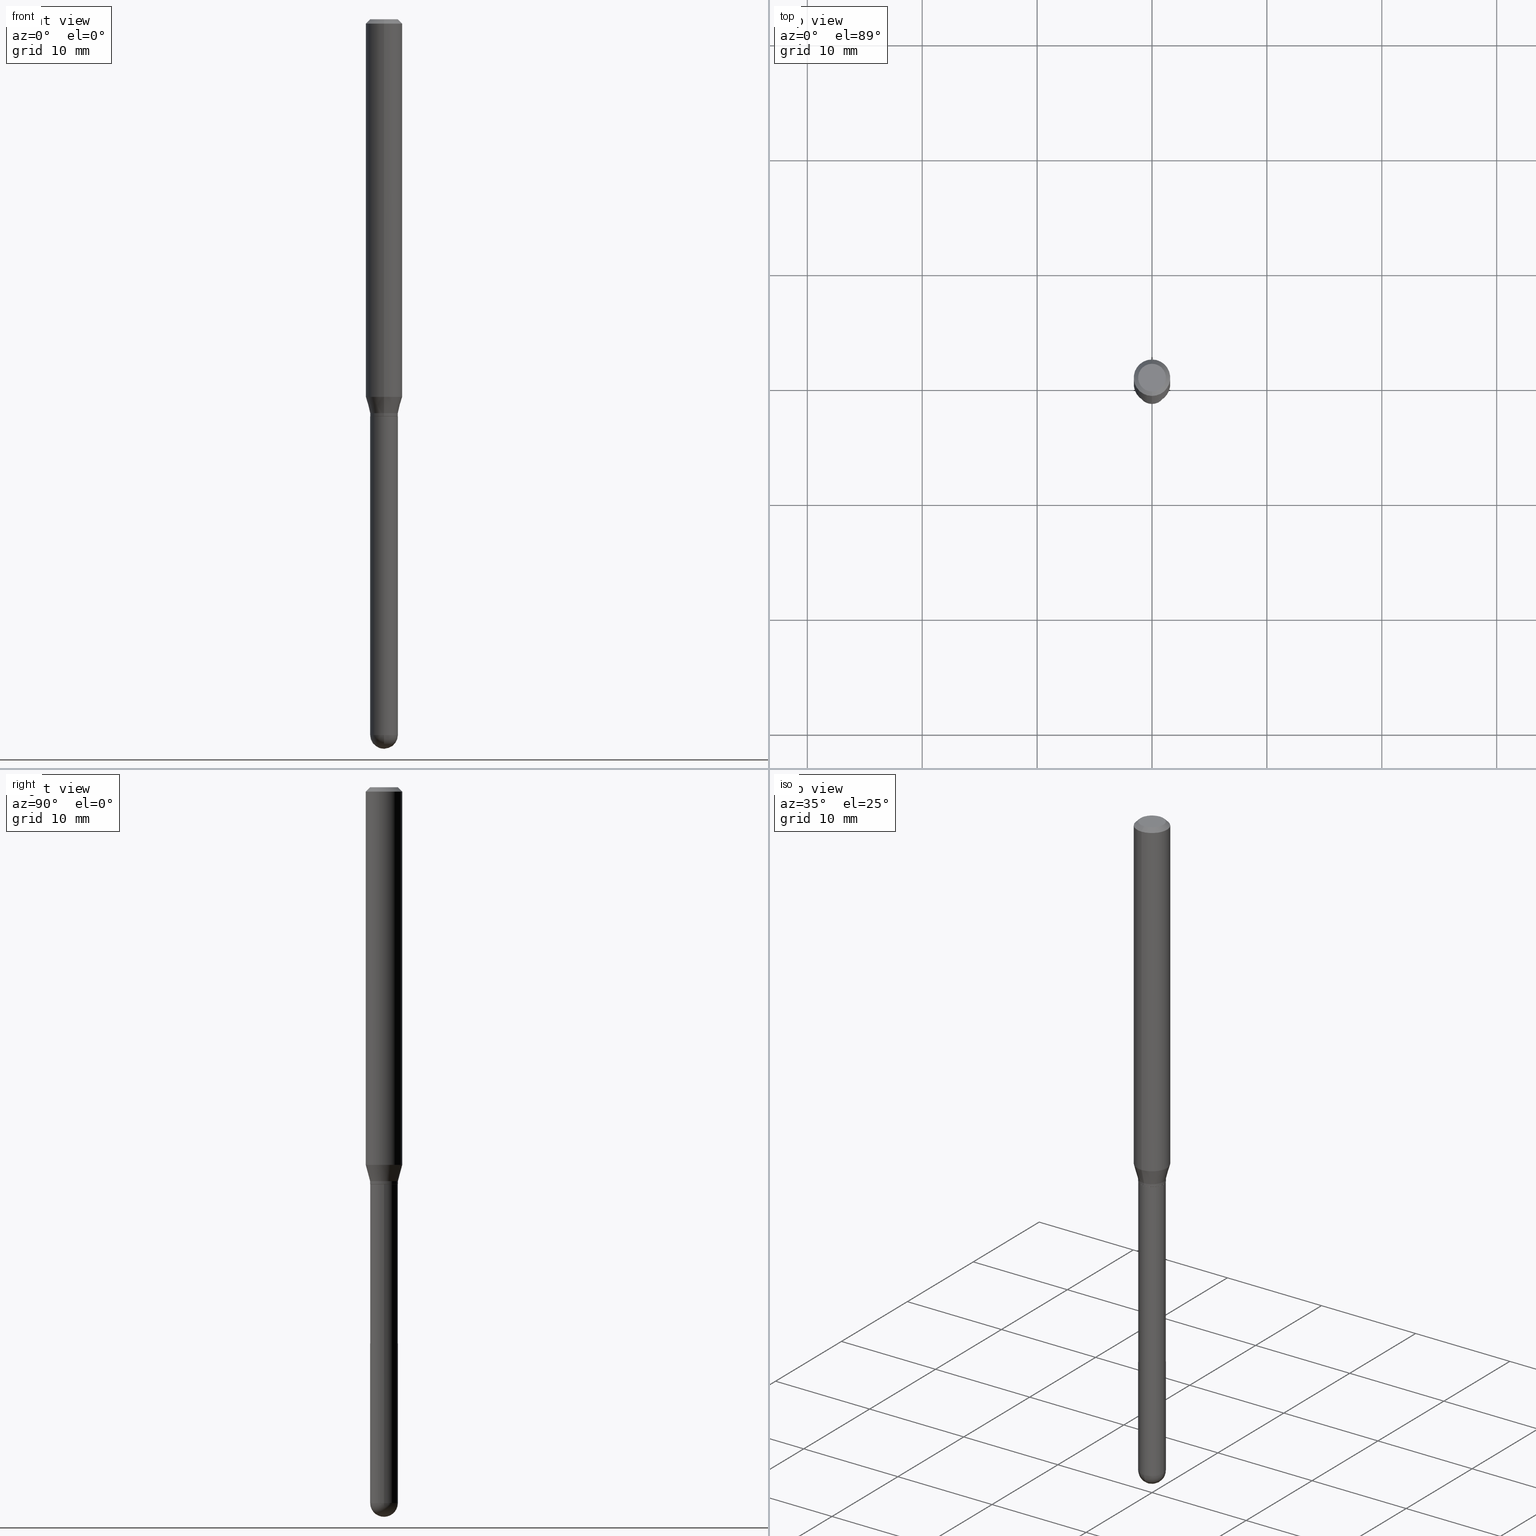
[diagram: canonical four-view strip — front | top / right | iso, engineering-drawing reading convention]
A machine part, canonical four-view strip (front | top / right | iso — engineering-drawing reading convention). The complete STEP part file that produces these views, byte-faithful:
ISO-10303-21;
HEADER;
FILE_DESCRIPTION (( 'STEP AP203' ),
    '1' );
FILE_NAME ('04532.STEP',
    '2024-03-08T20:34:15',
    ( '' ),
    ( '' ),
    'SwSTEP 2.0',
    'SolidWorks 2023',
    '' );
FILE_SCHEMA (( 'CONFIG_CONTROL_DESIGN' ));
ENDSEC;

DATA;
#1 = VECTOR ( 'NONE', #48, 39.37007874015748143 ) ;
#2 = CARTESIAN_POINT ( 'NONE',  ( 3.907985046680881378E-16, 0.04749999999999549027, -1.350000000000000311 ) ) ;
#3 = VECTOR ( 'NONE', #182, 39.37007874015748143 ) ;
#4 = DIRECTION ( 'NONE',  ( -6.982962677686266711E-15, -1.000000000000000000, 5.812442539711199378E-15 ) ) ;
#5 = VERTEX_POINT ( 'NONE', #459 ) ;
#6 = ADVANCED_FACE ( 'NONE', ( #102 ), #350, .T. ) ;
#7 = COORDINATED_UNIVERSAL_TIME_OFFSET ( 5, 0, .BEHIND. ) ;
#8 = DIRECTION ( 'NONE',  ( -2.445498962986345500E-29, 3.491438152587396054E-15, 1.000000000000000000 ) ) ;
#9 = CARTESIAN_POINT ( 'NONE',  ( -3.316907271900970672E-16, -0.04749999999999991729, 1.658433122479010522E-16 ) ) ;
#10 = PERSON_AND_ORGANIZATION_ROLE ( 'classification_officer' ) ;
#11 = DIRECTION ( 'NONE',  ( -2.445498962986345220E-29, 3.491438152587396054E-15, 1.000000000000000000 ) ) ;
#12 = FACE_OUTER_BOUND ( 'NONE', #497, .T. ) ;
#13 = EDGE_CURVE ( 'NONE', #339, #488, #421, .T. ) ;
#14 = CIRCLE ( 'NONE', #341, 0.04749999999999999362 ) ;
#15 = CC_DESIGN_APPROVAL ( #207, ( #134 ) ) ;
#16 = LINE ( 'NONE', #46, #35 ) ;
#17 = DIRECTION ( 'NONE',  ( -6.982962677686266711E-15, -1.000000000000000000, 3.491438152587396054E-15 ) ) ;
#18 = PERSON_AND_ORGANIZATION_ROLE ( 'creator' ) ;
#19 = ORIENTED_EDGE ( 'NONE', *, *, #173, .T. ) ;
#20 = CIRCLE ( 'NONE', #171, 0.04750000000000000749 ) ;
#21 = CARTESIAN_POINT ( 'NONE',  ( 3.301423600031566902E-29, -4.713441505992984239E-15, -1.350000000000000089 ) ) ;
#22 = CIRCLE ( 'NONE', #290, 0.04749999999999998668 ) ;
#23 = ADVANCED_FACE ( 'NONE', ( #398 ), #195, .T. ) ;
#24 = ORIENTED_EDGE ( 'NONE', *, *, #188, .F. ) ;
#25 = ORIENTED_EDGE ( 'NONE', *, *, #13, .T. ) ;
#26 = DIRECTION ( 'NONE',  ( -2.445498962986345500E-29, 3.491438152587396054E-15, 1.000000000000000000 ) ) ;
#27 = DIRECTION ( 'NONE',  ( -2.445498962986345500E-29, 3.491438152587396054E-15, 1.000000000000000000 ) ) ;
#28 = EDGE_CURVE ( 'NONE', #131, #72, #75, .T. ) ;
#29 = ORIENTED_EDGE ( 'NONE', *, *, #372, .T. ) ;
#30 = FACE_OUTER_BOUND ( 'NONE', #389, .T. ) ;
#31 = CIRCLE ( 'NONE', #348, 0.04750000000000000749 ) ;
#32 = ORIENTED_EDGE ( 'NONE', *, *, #140, .T. ) ;
#33 = CC_DESIGN_PERSON_AND_ORGANIZATION_ASSIGNMENT ( #206, #436, ( #475 ) ) ;
#34 = LINE ( 'NONE', #196, #469 ) ;
#35 = VECTOR ( 'NONE', #11, 39.37007874015748143 ) ;
#36 = ORIENTED_EDGE ( 'NONE', *, *, #393, .F. ) ;
#37 = COORDINATED_UNIVERSAL_TIME_OFFSET ( 5, 0, .BEHIND. ) ;
#38 =( LENGTH_UNIT ( ) NAMED_UNIT ( * ) SI_UNIT ( $, .METRE. ) );
#39 = ADVANCED_FACE ( 'NONE', ( #12 ), #105, .T. ) ;
#40 = DIRECTION ( 'NONE',  ( 6.982962677686265133E-15, 1.000000000000000000, 0.000000000000000000 ) ) ;
#41 = DIRECTION ( 'NONE',  ( -2.445468806185136877E-29, 3.491481338843145188E-15, 1.000000000000000000 ) ) ;
#42 = AXIS2_PLACEMENT_3D ( 'NONE', #303, #388, #346 ) ;
#43 = DIRECTION ( 'NONE',  ( -2.445468806185136597E-29, 3.491481338843145583E-15, 1.000000000000000000 ) ) ;
#44 = DIRECTION ( 'NONE',  ( 1.000000000000000000, -6.982962677686266711E-15, 4.876176775795934672E-29 ) ) ;
#45 = COORDINATED_UNIVERSAL_TIME_OFFSET ( 5, 0, .BEHIND. ) ;
#46 = CARTESIAN_POINT ( 'NONE',  ( 3.375077994860469513E-16, 0.04749999999999991729, -1.658433122479010522E-16 ) ) ;
#47 = EDGE_CURVE ( 'NONE', #380, #216, #320, .T. ) ;
#48 = DIRECTION ( 'NONE',  ( -2.445498962986345220E-29, 3.491438152587396054E-15, 1.000000000000000000 ) ) ;
#49 = DATE_AND_TIME ( #121, #486 ) ;
#50 = CARTESIAN_POINT ( 'NONE',  ( 1.601857710178212652E-45, -2.286971783256373570E-31, -6.550228539954431705E-17 ) ) ;
#51 = AXIS2_PLACEMENT_3D ( 'NONE', #141, #101, #194 ) ;
#52 = CARTESIAN_POINT ( 'NONE',  ( 3.301423600031566902E-29, -4.713441505992984239E-15, -1.350000000000000089 ) ) ;
#53 = ORIENTED_EDGE ( 'NONE', *, *, #63, .T. ) ;
#54 = ORIENTED_EDGE ( 'NONE', *, *, #477, .T. ) ;
#55 = FACE_OUTER_BOUND ( 'NONE', #373, .T. ) ;
#56 = ORIENTED_EDGE ( 'NONE', *, *, #506, .T. ) ;
#57 = EDGE_LOOP ( 'NONE', ( #263, #306, #258, #97 ) ) ;
#58 = AXIS2_PLACEMENT_3D ( 'NONE', #493, #27, #149 ) ;
#59 = DIRECTION ( 'NONE',  ( -6.982962677686265922E-15, -1.000000000000000000, 4.370956789862821150E-15 ) ) ;
#60 = ORIENTED_EDGE ( 'NONE', *, *, #437, .F. ) ;
#61 = CARTESIAN_POINT ( 'NONE',  ( -3.316907271900611741E-16, -0.04750000000000428185, -1.359500000000000153 ) ) ;
#62 = DIRECTION ( 'NONE',  ( 1.000000000000000000, -6.982962677686280910E-15, 0.000000000000000000 ) ) ;
#63 = EDGE_CURVE ( 'NONE', #498, #216, #296, .T. ) ;
#64 = ORIENTED_EDGE ( 'NONE', *, *, #412, .T. ) ;
#65 = CARTESIAN_POINT ( 'NONE',  ( -0.04749999999999999362, -6.318128502683699525E-15, -1.360000000000000320 ) ) ;
#66 = VECTOR ( 'NONE', #41, 39.37007874015748143 ) ;
#67 = EDGE_LOOP ( 'NONE', ( #25, #327 ) ) ;
#68 = APPROVAL ( #294, 'UNSPECIFIED' ) ;
#69 = CARTESIAN_POINT ( 'NONE',  ( -3.316907271900660552E-16, -0.04750000000000491329, -1.349999999999999867 ) ) ;
#70 = PERSON_AND_ORGANIZATION ( #252, #359 ) ;
#71 = ORIENTED_EDGE ( 'NONE', *, *, #307, .F. ) ;
#72 = VERTEX_POINT ( 'NONE', #81 ) ;
#73 = PERSON_AND_ORGANIZATION ( #252, #359 ) ;
#74 = DIRECTION ( 'NONE',  ( -6.982962677686265133E-15, -1.000000000000000000, 5.751258934030070759E-15 ) ) ;
#75 = CIRCLE ( 'NONE', #288, 0.06250000000000000000 ) ;
#76 = PLANE ( 'NONE',  #124 ) ;
#77 = APPLICATION_PROTOCOL_DEFINITION ( 'international standard', 'config_control_design', 1994, #229 ) ;
#78 = DIRECTION ( 'NONE',  ( -1.000000000000000000, 6.982962677686265922E-15, -4.876176775795935793E-29 ) ) ;
#79 = EDGE_CURVE ( 'NONE', #370, #292, #439, .T. ) ;
#80 = DESIGN_CONTEXT ( 'detailed design', #229, 'design' ) ;
#81 = CARTESIAN_POINT ( 'NONE',  ( 4.440892098500944664E-16, 0.06249999999999995143, -0.01500000000000028394 ) ) ;
#82 = DIRECTION ( 'NONE',  ( -2.445498962986345220E-29, 3.491438152587396054E-15, 1.000000000000000000 ) ) ;
#83 = FACE_OUTER_BOUND ( 'NONE', #248, .T. ) ;
#84 = APPROVAL_DATE_TIME ( #49, #207 ) ;
#85 = SECURITY_CLASSIFICATION_LEVEL ( 'unclassified' ) ;
#86 = EDGE_CURVE ( 'NONE', #370, #220, #413, .T. ) ;
#87 = CARTESIAN_POINT ( 'NONE',  ( 3.375077994860819570E-16, 0.04749999999999549027, -1.350000000000000311 ) ) ;
#88 = FACE_OUTER_BOUND ( 'NONE', #57, .T. ) ;
#89 = DIRECTION ( 'NONE',  ( -2.445498962986345500E-29, 3.491438152587396054E-15, 1.000000000000000000 ) ) ;
#90 = ORIENTED_EDGE ( 'NONE', *, *, #173, .F. ) ;
#91 = CALENDAR_DATE ( 2024, 8, 3 ) ;
#92 = CC_DESIGN_SECURITY_CLASSIFICATION ( #134, ( #475 ) ) ;
#93 = DIRECTION ( 'NONE',  ( -6.982962677686265133E-15, -1.000000000000000000, 5.751258934030070759E-15 ) ) ;
#94 = EDGE_CURVE ( 'NONE', #488, #131, #120, .T. ) ;
#95 = CARTESIAN_POINT ( 'NONE',  ( 5.993450207295445537E-29, -8.568675055808764986E-15, -2.452500000000000124 ) ) ;
#96 = CARTESIAN_POINT ( 'NONE',  ( 4.364351673553919652E-16, 0.06249999999999995143, -0.01500000000000028394 ) ) ;
#97 = ORIENTED_EDGE ( 'NONE', *, *, #47, .F. ) ;
#98 = CARTESIAN_POINT ( 'NONE',  ( -3.281992458512212238E-16, -0.04700000000000473938, -1.360000000000000320 ) ) ;
#99 = ADVANCED_FACE ( 'NONE', ( #83 ), #476, .F. ) ;
#100 = ORIENTED_EDGE ( 'NONE', *, *, #323, .T. ) ;
#101 = DIRECTION ( 'NONE',  ( 2.445498962986345500E-29, -3.491438152587396054E-15, -1.000000000000000000 ) ) ;
#102 = FACE_OUTER_BOUND ( 'NONE', #463, .T. ) ;
#103 = ORIENTED_EDGE ( 'NONE', *, *, #86, .F. ) ;
#104 = ORIENTED_EDGE ( 'NONE', *, *, #477, .F. ) ;
#105 = CONICAL_SURFACE ( 'NONE', #447, 0.04699999999999999317, 0.7853981633969275844 ) ;
#106 = ORIENTED_EDGE ( 'NONE', *, *, #79, .T. ) ;
#107 = ADVANCED_FACE ( 'NONE', ( #402 ), #322, .T. ) ;
#108 = CARTESIAN_POINT ( 'NONE',  ( 0.000000000000000000, 0.000000000000000000, 0.000000000000000000 ) ) ;
#109 = ORIENTED_EDGE ( 'NONE', *, *, #113, .F. ) ;
#110 = EDGE_LOOP ( 'NONE', ( #311, #185, #274, #376 ) ) ;
#111 = CARTESIAN_POINT ( 'NONE',  ( 3.164522704335733428E-29, -4.517988137338873402E-15, -1.294019237886466112 ) ) ;
#112 = CARTESIAN_POINT ( 'NONE',  ( -0.04750000000000000749, -6.318128502683699525E-15, -2.452500000000000124 ) ) ;
#113 = EDGE_CURVE ( 'NONE', #498, #262, #289, .T. ) ;
#114 = CLOSED_SHELL ( 'NONE', ( #6, #217, #99, #312, #23 ) ) ;
#115 = DIRECTION ( 'NONE',  ( -6.982962677686265922E-15, -1.000000000000000000, 5.751258934030003706E-15 ) ) ;
#116 = CIRCLE ( 'NONE', #505, 0.04699999999999999317 ) ;
#117 = PERSON_AND_ORGANIZATION_ROLE ( 'design_owner' ) ;
#118 = DIRECTION ( 'NONE',  ( -6.982962677686266711E-15, -1.000000000000000000, 3.491438152587396054E-15 ) ) ;
#119 = CYLINDRICAL_SURFACE ( 'NONE', #298, 0.04749999999999991729 ) ;
#120 = LINE ( 'NONE', #285, #133 ) ;
#121 = CALENDAR_DATE ( 2024, 8, 3 ) ;
#122 = PERSON_AND_ORGANIZATION ( #252, #359 ) ;
#123 = DIRECTION ( 'NONE',  ( -6.982962677686265922E-15, -1.000000000000000000, 3.491438152587396054E-15 ) ) ;
#124 = AXIS2_PLACEMENT_3D ( 'NONE', #128, #178, #254 ) ;
#125 = AXIS2_PLACEMENT_3D ( 'NONE', #259, #148, #491 ) ;
#126 = DIRECTION ( 'NONE',  ( 6.982962677686265922E-15, 1.000000000000000000, -3.483106191921935554E-15 ) ) ;
#127 = FACE_OUTER_BOUND ( 'NONE', #215, .T. ) ;
#128 = CARTESIAN_POINT ( 'NONE',  ( 3.325878589661431203E-29, -4.748355887518859359E-15, -1.360000000000000320 ) ) ;
#129 = DATE_AND_TIME ( #244, #319 ) ;
#130 = ADVANCED_FACE ( 'NONE', ( #127 ), #76, .F. ) ;
#131 = VERTEX_POINT ( 'NONE', #251 ) ;
#132 = DATE_AND_TIME ( #91, #391 ) ;
#133 = VECTOR ( 'NONE', #363, 39.37007874015748143 ) ;
#134 = SECURITY_CLASSIFICATION ( '', '', #85 ) ;
#135 = ORIENTED_EDGE ( 'NONE', *, *, #379, .F. ) ;
#136 = LINE ( 'NONE', #324, #243 ) ;
#137 = DIRECTION ( 'NONE',  ( 4.937700262164548042E-15, 0.7071067811865451302, -0.7071067811865499042 ) ) ;
#138 = DIRECTION ( 'NONE',  ( -2.445498962986345500E-29, 3.491438152587396054E-15, 1.000000000000000000 ) ) ;
#139 = DIRECTION ( 'NONE',  ( 1.000000000000000000, -6.982962677686261977E-15, 0.000000000000000000 ) ) ;
#140 = EDGE_CURVE ( 'NONE', #339, #72, #452, .T. ) ;
#141 = CARTESIAN_POINT ( 'NONE',  ( 3.668248444479534418E-31, -5.237157228881117032E-17, -0.01500000000000006710 ) ) ;
#142 = CIRCLE ( 'NONE', #184, 0.06250000000000000000 ) ;
#143 = VERTEX_POINT ( 'NONE', #408 ) ;
#144 = CONICAL_SURFACE ( 'NONE', #51, 0.06250000000000000000, 0.7853981633974483900 ) ;
#145 = FACE_OUTER_BOUND ( 'NONE', #147, .T. ) ;
#146 = PLANE ( 'NONE',  #313 ) ;
#147 = EDGE_LOOP ( 'NONE', ( #315, #383, #32, #54 ) ) ;
#148 = DIRECTION ( 'NONE',  ( -2.445468806185136597E-29, 3.491481338843145583E-15, 1.000000000000000000 ) ) ;
#149 = DIRECTION ( 'NONE',  ( -6.982962677686265922E-15, -1.000000000000000000, 5.751258934030003706E-15 ) ) ;
#150 = ADVANCED_FACE ( 'NONE', ( #55 ), #224, .T. ) ;
#151 = ORIENTED_EDGE ( 'NONE', *, *, #140, .F. ) ;
#152 = AXIS2_PLACEMENT_3D ( 'NONE', #267, #423, #509 ) ;
#153 = DIRECTION ( 'NONE',  ( -2.445498962986345500E-29, 3.491438152587396054E-15, 1.000000000000000000 ) ) ;
#154 = CIRCLE ( 'NONE', #125, 0.04750000000000000749 ) ;
#155 = ORIENTED_EDGE ( 'NONE', *, *, #47, .T. ) ;
#156 = ORIENTED_EDGE ( 'NONE', *, *, #461, .F. ) ;
#157 =( NAMED_UNIT ( * ) SI_UNIT ( $, .STERADIAN. ) SOLID_ANGLE_UNIT ( ) );
#158 = EDGE_CURVE ( 'NONE', #211, #292, #428, .T. ) ;
#159 = DIRECTION ( 'NONE',  ( -2.445468806185136597E-29, 3.491481338843145583E-15, 1.000000000000000000 ) ) ;
#160 = VECTOR ( 'NONE', #266, 39.37007874015748143 ) ;
#161 = DIRECTION ( 'NONE',  ( -2.445498962986345500E-29, 3.491438152587396054E-15, 1.000000000000000000 ) ) ;
#162 = AXIS2_PLACEMENT_3D ( 'NONE', #235, #43, #197 ) ;
#163 = DIRECTION ( 'NONE',  ( -6.982962677686265922E-15, -1.000000000000000000, 3.483106191921935554E-15 ) ) ;
#164 = FACE_OUTER_BOUND ( 'NONE', #336, .T. ) ;
#165 = CARTESIAN_POINT ( 'NONE',  ( 0.000000000000000000, 0.000000000000000000, 0.000000000000000000 ) ) ;
#166 = PRODUCT_RELATED_PRODUCT_CATEGORY ( 'detail', '', ( #176 ) ) ;
#167 = CARTESIAN_POINT ( 'NONE',  ( 4.440892098500943678E-16, 0.06249999999999551054, -1.294019237886466334 ) ) ;
#168 = EDGE_LOOP ( 'NONE', ( #192, #304, #302, #106, #501 ) ) ;
#169 = DIRECTION ( 'NONE',  ( -1.000000000000000000, 6.982962677686265922E-15, -4.883557194083112340E-29 ) ) ;
#170 = DIRECTION ( 'NONE',  ( 1.000000000000000000, -6.982962677686280910E-15, 0.000000000000000000 ) ) ;
#171 = AXIS2_PLACEMENT_3D ( 'NONE', #456, #270, #62 ) ;
#172 = FACE_OUTER_BOUND ( 'NONE', #492, .T. ) ;
#173 = EDGE_CURVE ( 'NONE', #262, #143, #232, .T. ) ;
#174 = ORIENTED_EDGE ( 'NONE', *, *, #354, .F. ) ;
#175 = FACE_OUTER_BOUND ( 'NONE', #480, .T. ) ;
#176 = PRODUCT ( '04532', '04532', '', ( #424 ) ) ;
#177 = ORIENTED_EDGE ( 'NONE', *, *, #338, .F. ) ;
#178 = DIRECTION ( 'NONE',  ( -2.445498962986344940E-29, 3.491438152587396054E-15, 1.000000000000000000 ) ) ;
#179 = ADVANCED_FACE ( 'NONE', ( #88 ), #219, .T. ) ;
#180 = ORIENTED_EDGE ( 'NONE', *, *, #465, .T. ) ;
#181 = LINE ( 'NONE', #337, #3 ) ;
#182 = DIRECTION ( 'NONE',  ( -2.445498962986345220E-29, 3.491438152587396054E-15, 1.000000000000000000 ) ) ;
#183 = CARTESIAN_POINT ( 'NONE',  ( 3.316907271901575630E-16, 0.04749999999999143102, -2.452500000000000568 ) ) ;
#184 = AXIS2_PLACEMENT_3D ( 'NONE', #111, #138, #330 ) ;
#185 = ORIENTED_EDGE ( 'NONE', *, *, #379, .T. ) ;
#186 = AXIS2_PLACEMENT_3D ( 'NONE', #356, #268, #272 ) ;
#187 = DIRECTION ( 'NONE',  ( -6.982962677686265922E-15, -1.000000000000000000, 3.491438152587396054E-15 ) ) ;
#188 = EDGE_CURVE ( 'NONE', #488, #339, #14, .T. ) ;
#189 = DIRECTION ( 'NONE',  ( -2.445468806185136877E-29, 3.491481338843145188E-15, 1.000000000000000000 ) ) ;
#190 = AXIS2_PLACEMENT_3D ( 'NONE', #301, #414, #59 ) ;
#191 = APPROVAL_PERSON_ORGANIZATION ( #479, #68, #446 ) ;
#192 = ORIENTED_EDGE ( 'NONE', *, *, #499, .F. ) ;
#193 = CARTESIAN_POINT ( 'NONE',  ( -3.773273898774340269E-16, -0.04749999999999999362, 1.003410268483569694E-16 ) ) ;
#194 = DIRECTION ( 'NONE',  ( 6.982962677686265922E-15, 1.000000000000000000, -3.483106191921935554E-15 ) ) ;
#195 = CYLINDRICAL_SURFACE ( 'NONE', #247, 0.04750000000000000749 ) ;
#196 = CARTESIAN_POINT ( 'NONE',  ( -0.04750000000000000749, 3.375077994860476415E-16, -2.336494167871080260E-30 ) ) ;
#197 = DIRECTION ( 'NONE',  ( 1.000000000000000000, -6.982962677686261977E-15, 0.000000000000000000 ) ) ;
#198 = APPROVAL_ROLE ( '' ) ;
#199 = AXIS2_PLACEMENT_3D ( 'NONE', #431, #242, #78 ) ;
#200 = CARTESIAN_POINT ( 'NONE',  ( 5.997512247169047773E-29, -8.562857983512815004E-15, -2.452500000000000124 ) ) ;
#201 = APPROVAL_PERSON_ORGANIZATION ( #202, #207, #198 ) ;
#202 = PERSON_AND_ORGANIZATION ( #252, #359 ) ;
#203 = APPROVAL_DATE_TIME ( #132, #68 ) ;
#204 = ORIENTED_EDGE ( 'NONE', *, *, #63, .F. ) ;
#205 = ADVANCED_FACE ( 'NONE', ( #172 ), #293, .T. ) ;
#206 = PERSON_AND_ORGANIZATION ( #252, #359 ) ;
#207 = APPROVAL ( #316, 'UNSPECIFIED' ) ;
#208 = ORIENTED_EDGE ( 'NONE', *, *, #323, .F. ) ;
#209 = ORIENTED_EDGE ( 'NONE', *, *, #94, .T. ) ;
#210 = EDGE_CURVE ( 'NONE', #271, #380, #386, .T. ) ;
#211 = VERTEX_POINT ( 'NONE', #65 ) ;
#212 = DIRECTION ( 'NONE',  ( -6.982962677686265922E-15, -1.000000000000000000, 5.751258934030003706E-15 ) ) ;
#213 = ORIENTED_EDGE ( 'NONE', *, *, #158, .T. ) ;
#214 = ORIENTED_EDGE ( 'NONE', *, *, #86, .T. ) ;
#215 = EDGE_LOOP ( 'NONE', ( #411, #260 ) ) ;
#216 = VERTEX_POINT ( 'NONE', #69 ) ;
#217 = ADVANCED_FACE ( 'NONE', ( #30 ), #221, .T. ) ;
#218 = DIRECTION ( 'NONE',  ( -2.445468806185136597E-29, 3.491481338843145583E-15, 1.000000000000000000 ) ) ;
#219 = CYLINDRICAL_SURFACE ( 'NONE', #438, 0.04749999999999991729 ) ;
#220 = VERTEX_POINT ( 'NONE', #183 ) ;
#221 = SPHERICAL_SURFACE ( 'NONE', #494, 0.04749999999999998668 ) ;
#222 = ORIENTED_EDGE ( 'NONE', *, *, #444, .F. ) ;
#223 = EDGE_CURVE ( 'NONE', #271, #5, #333, .T. ) ;
#224 = CONICAL_SURFACE ( 'NONE', #504, 0.04750000000000020178, 0.2617993877991424689 ) ;
#225 = AXIS2_PLACEMENT_3D ( 'NONE', #425, #351, #74 ) ;
#226 = VERTEX_POINT ( 'NONE', #340 ) ;
#227 = DIRECTION ( 'NONE',  ( -1.000000000000000000, 6.982962677686265922E-15, -4.883557194083112340E-29 ) ) ;
#228 = APPROVAL_DATE_TIME ( #231, #331 ) ;
#229 = APPLICATION_CONTEXT ( 'configuration controlled 3d designs of mechanical parts and assemblies' ) ;
#230 = ADVANCED_FACE ( 'NONE', ( #264 ), #318, .T. ) ;
#231 = DATE_AND_TIME ( #432, #325 ) ;
#232 = CIRCLE ( 'NONE', #190, 0.06250000000000000000 ) ;
#233 = CC_DESIGN_APPROVAL ( #68, ( #475 ) ) ;
#234 = LINE ( 'NONE', #502, #277 ) ;
#235 = CARTESIAN_POINT ( 'NONE',  ( 3.325837576411786624E-29, -4.748414620826679034E-15, -1.360000000000000320 ) ) ;
#236 = DATE_TIME_ROLE ( 'classification_date' ) ;
#237 = DIRECTION ( 'NONE',  ( -1.807323732225277680E-15, -0.2588190451025106920, 0.9659258262890710878 ) ) ;
#238 = CARTESIAN_POINT ( 'NONE',  ( 3.668248444479534418E-31, -5.237157228881117032E-17, -0.01500000000000006710 ) ) ;
#239 = CC_DESIGN_DATE_AND_TIME_ASSIGNMENT ( #129, #326, ( #299 ) ) ;
#240 = CARTESIAN_POINT ( 'NONE',  ( 5.993450207295445537E-29, -8.568675055808764986E-15, -2.452500000000000124 ) ) ;
#241 = AXIS2_PLACEMENT_3D ( 'NONE', #503, #153, #419 ) ;
#242 = DIRECTION ( 'NONE',  ( 2.438088387897960049E-29, -3.491481338843145188E-15, -1.000000000000000000 ) ) ;
#243 = VECTOR ( 'NONE', #295, 39.37007874015748143 ) ;
#244 = CALENDAR_DATE ( 2024, 8, 3 ) ;
#245 = DIRECTION ( 'NONE',  ( -2.445498962986345500E-29, 3.491438152587396054E-15, 1.000000000000000000 ) ) ;
#246 = EDGE_CURVE ( 'NONE', #409, #273, #20, .T. ) ;
#247 = AXIS2_PLACEMENT_3D ( 'NONE', #403, #355, #44 ) ;
#248 = EDGE_LOOP ( 'NONE', ( #64, #213 ) ) ;
#249 =( GEOMETRIC_REPRESENTATION_CONTEXT ( 3 ) GLOBAL_UNCERTAINTY_ASSIGNED_CONTEXT ( ( #482 ) ) GLOBAL_UNIT_ASSIGNED_CONTEXT ( ( #283, #317, #157 ) ) REPRESENTATION_CONTEXT ( 'NONE', 'WORKASPACE' ) );
#250 = DIRECTION ( 'NONE',  ( 2.445498962986344940E-29, -3.491438152587396054E-15, -1.000000000000000000 ) ) ;
#251 = CARTESIAN_POINT ( 'NONE',  ( -4.364351673553912750E-16, -0.06250000000000005551, -0.01499999999999984852 ) ) ;
#252 = PERSON ( 'UNSPECIFIED', 'UNSPECIFIED', 'UNSPECIFIED', ('UNSPECIFIED'), ('UNSPECIFIED'), ('UNSPECIFIED') ) ;
#253 = ORIENTED_EDGE ( 'NONE', *, *, #444, .T. ) ;
#254 = DIRECTION ( 'NONE',  ( -6.982962677686265922E-15, -1.000000000000000000, 3.491438152587396054E-15 ) ) ;
#255 = AXIS2_PLACEMENT_3D ( 'NONE', #21, #245, #212 ) ;
#256 = LOCAL_TIME ( 15, 34, 15.00000000000000000, #279 ) ;
#257 = DIRECTION ( 'NONE',  ( -6.982962677686265922E-15, -1.000000000000000000, 3.491438152587396843E-15 ) ) ;
#258 = ORIENTED_EDGE ( 'NONE', *, *, #372, .F. ) ;
#259 = CARTESIAN_POINT ( 'NONE',  ( 5.997512247169047773E-29, -8.562857983512815004E-15, -2.452500000000000124 ) ) ;
#260 = ORIENTED_EDGE ( 'NONE', *, *, #465, .F. ) ;
#261 = ADVANCED_FACE ( 'NONE', ( #495 ), #146, .F. ) ;
#262 = VERTEX_POINT ( 'NONE', #167 ) ;
#263 = ORIENTED_EDGE ( 'NONE', *, *, #426, .T. ) ;
#264 = FACE_OUTER_BOUND ( 'NONE', #440, .T. ) ;
#265 = CIRCLE ( 'NONE', #162, 0.04749999999999999362 ) ;
#266 = DIRECTION ( 'NONE',  ( -4.937700262161976356E-15, -0.7071067811861768693, 0.7071067811869181652 ) ) ;
#267 = CARTESIAN_POINT ( 'NONE',  ( 0.000000000000000000, 0.000000000000000000, 0.000000000000000000 ) ) ;
#268 = DIRECTION ( 'NONE',  ( -2.445498962986345500E-29, 3.491438152587396054E-15, 1.000000000000000000 ) ) ;
#269 = EDGE_CURVE ( 'NONE', #143, #262, #142, .T. ) ;
#270 = DIRECTION ( 'NONE',  ( -2.445468806185136597E-29, 3.491481338843145583E-15, 1.000000000000000000 ) ) ;
#271 = VERTEX_POINT ( 'NONE', #98 ) ;
#272 = DIRECTION ( 'NONE',  ( -6.982962677686265922E-15, -1.000000000000000000, 3.483106191921935554E-15 ) ) ;
#273 = VERTEX_POINT ( 'NONE', #478 ) ;
#274 = ORIENTED_EDGE ( 'NONE', *, *, #28, .F. ) ;
#275 = LINE ( 'NONE', #281, #401 ) ;
#276 = AXIS2_PLACEMENT_3D ( 'NONE', #435, #352, #118 ) ;
#277 = VECTOR ( 'NONE', #82, 39.37007874015748143 ) ;
#278 = DIRECTION ( 'NONE',  ( -6.982962677686266711E-15, -1.000000000000000000, 5.812442539711199378E-15 ) ) ;
#279 = COORDINATED_UNIVERSAL_TIME_OFFSET ( 5, 0, .BEHIND. ) ;
#280 = APPROVAL_ROLE ( '' ) ;
#281 = CARTESIAN_POINT ( 'NONE',  ( -3.316907271900660552E-16, -0.04750000000000491329, -1.349999999999999867 ) ) ;
#282 = ADVANCED_FACE ( 'NONE', ( #300 ), #347, .T. ) ;
#283 =( CONVERSION_BASED_UNIT ( 'INCH', #395 ) LENGTH_UNIT ( ) NAMED_UNIT ( #284 ) );
#284 = DIMENSIONAL_EXPONENTS ( 1.000000000000000000, 0.000000000000000000, 0.000000000000000000, 0.000000000000000000, 0.000000000000000000, 0.000000000000000000, 0.000000000000000000 ) ;
#285 = CARTESIAN_POINT ( 'NONE',  ( -4.287811248607203282E-16, -0.06250000000000005551, -0.01499999999999984852 ) ) ;
#286 = CALENDAR_DATE ( 2024, 8, 3 ) ;
#287 = PERSON_AND_ORGANIZATION_ROLE ( 'creator' ) ;
#288 = AXIS2_PLACEMENT_3D ( 'NONE', #238, #512, #163 ) ;
#289 = LINE ( 'NONE', #87, #484 ) ;
#290 = AXIS2_PLACEMENT_3D ( 'NONE', #240, #397, #40 ) ;
#291 = ADVANCED_FACE ( 'NONE', ( #175 ), #390, .T. ) ;
#292 = VERTEX_POINT ( 'NONE', #481 ) ;
#293 = CYLINDRICAL_SURFACE ( 'NONE', #366, 0.06250000000000000000 ) ;
#294 = APPROVAL_STATUS ( 'not_yet_approved' ) ;
#295 = DIRECTION ( 'NONE',  ( 5.024295867785445738E-15, 0.7071067811861817543, 0.7071067811869132802 ) ) ;
#296 = CIRCLE ( 'NONE', #358, 0.04750000000000020178 ) ;
#297 = ORIENTED_EDGE ( 'NONE', *, *, #426, .F. ) ;
#298 = AXIS2_PLACEMENT_3D ( 'NONE', #108, #375, #257 ) ;
#299 = PRODUCT_DEFINITION ( 'UNKNOWN', '', #475, #80 ) ;
#300 = FACE_OUTER_BOUND ( 'NONE', #343, .T. ) ;
#301 = CARTESIAN_POINT ( 'NONE',  ( 3.164522704335733428E-29, -4.517988137338873402E-15, -1.294019237886466112 ) ) ;
#302 = ORIENTED_EDGE ( 'NONE', *, *, #437, .T. ) ;
#303 = CARTESIAN_POINT ( 'NONE',  ( 3.325878589661431764E-29, -4.748355887518860148E-15, -1.360000000000000542 ) ) ;
#304 = ORIENTED_EDGE ( 'NONE', *, *, #246, .T. ) ;
#305 = CLOSED_SHELL ( 'NONE', ( #179, #230, #291, #107, #150, #282, #205, #407, #261, #130, #39, #471 ) ) ;
#306 = ORIENTED_EDGE ( 'NONE', *, *, #307, .T. ) ;
#307 = EDGE_CURVE ( 'NONE', #226, #498, #16, .T. ) ;
#308 = CARTESIAN_POINT ( 'NONE',  ( 5.993450207295445537E-29, -8.568675055808764986E-15, -2.452500000000000124 ) ) ;
#309 = EDGE_LOOP ( 'NONE', ( #174, #329, #103, #60 ) ) ;
#310 = ORIENTED_EDGE ( 'NONE', *, *, #246, .F. ) ;
#311 = ORIENTED_EDGE ( 'NONE', *, *, #269, .T. ) ;
#312 = ADVANCED_FACE ( 'NONE', ( #485 ), #441, .T. ) ;
#313 = AXIS2_PLACEMENT_3D ( 'NONE', #396, #250, #394 ) ;
#314 = CIRCLE ( 'NONE', #406, 0.04749999999999964667 ) ;
#315 = ORIENTED_EDGE ( 'NONE', *, *, #94, .F. ) ;
#316 = APPROVAL_STATUS ( 'not_yet_approved' ) ;
#317 =( NAMED_UNIT ( * ) PLANE_ANGLE_UNIT ( ) SI_UNIT ( $, .RADIAN. ) );
#318 = CONICAL_SURFACE ( 'NONE', #241, 0.04699999999999999317, 0.7853981633969275844 ) ;
#319 = LOCAL_TIME ( 15, 34, 15.00000000000000000, #45 ) ;
#320 = LINE ( 'NONE', #9, #1 ) ;
#321 = CARTESIAN_POINT ( 'NONE',  ( 0.04750000000000000749, -3.316907271900977082E-16, 2.316183968503069432E-30 ) ) ;
#322 = CYLINDRICAL_SURFACE ( 'NONE', #405, 0.06250000000000000000 ) ;
#323 = EDGE_CURVE ( 'NONE', #5, #226, #136, .T. ) ;
#324 = CARTESIAN_POINT ( 'NONE',  ( 3.339550858072802203E-16, 0.04699999999999524697, -1.360000000000000764 ) ) ;
#325 = LOCAL_TIME ( 15, 34, 15.00000000000000000, #37 ) ;
#326 = DATE_TIME_ROLE ( 'creation_date' ) ;
#327 = ORIENTED_EDGE ( 'NONE', *, *, #188, .T. ) ;
#328 = ORIENTED_EDGE ( 'NONE', *, *, #79, .F. ) ;
#329 = ORIENTED_EDGE ( 'NONE', *, *, #461, .T. ) ;
#330 = DIRECTION ( 'NONE',  ( -6.982962677686265922E-15, -1.000000000000000000, 4.370956789862821150E-15 ) ) ;
#331 = APPROVAL ( #345, 'UNSPECIFIED' ) ;
#332 = MANIFOLD_SOLID_BREP ( 'Body-Move/Copy2[2]', #305 ) ;
#333 = CIRCLE ( 'NONE', #42, 0.04699999999999999317 ) ;
#334 = CC_DESIGN_APPROVAL ( #331, ( #299 ) ) ;
#335 = ADVANCED_BREP_SHAPE_REPRESENTATION ( '04532', ( #510, #332, #415 ), #249 ) ;
#336 = EDGE_LOOP ( 'NONE', ( #71, #416, #155, #204 ) ) ;
#337 = CARTESIAN_POINT ( 'NONE',  ( 4.440892098500625669E-16, 0.06250000000000000000, -2.182148845367122534E-16 ) ) ;
#338 = EDGE_CURVE ( 'NONE', #226, #380, #314, .T. ) ;
#339 = VERTEX_POINT ( 'NONE', #381 ) ;
#340 = CARTESIAN_POINT ( 'NONE',  ( 3.375077994860790481E-16, 0.04749999999999501149, -1.359500000000000597 ) ) ;
#341 = AXIS2_PLACEMENT_3D ( 'NONE', #50, #369, #17 ) ;
#342 = CIRCLE ( 'NONE', #507, 0.04749999999999998668 ) ;
#343 = EDGE_LOOP ( 'NONE', ( #109, #53, #253, #90 ) ) ;
#344 = DIRECTION ( 'NONE',  ( -1.000000000000000000, 7.105427357601001070E-15, -4.926315508542082329E-29 ) ) ;
#345 = APPROVAL_STATUS ( 'not_yet_approved' ) ;
#346 = DIRECTION ( 'NONE',  ( -6.982962677686266711E-15, -1.000000000000000000, 5.812442539711199378E-15 ) ) ;
#347 = CONICAL_SURFACE ( 'NONE', #255, 0.04750000000000020178, 0.2617993877991424689 ) ;
#348 = AXIS2_PLACEMENT_3D ( 'NONE', #392, #159, #470 ) ;
#349 = CARTESIAN_POINT ( 'NONE',  ( -3.281992458512212238E-16, -0.04700000000000473938, -1.360000000000000320 ) ) ;
#350 = CYLINDRICAL_SURFACE ( 'NONE', #152, 0.04750000000000000749 ) ;
#351 = DIRECTION ( 'NONE',  ( -2.445498962986345500E-29, 3.491438152587396054E-15, 1.000000000000000000 ) ) ;
#352 = DIRECTION ( 'NONE',  ( -2.445498962986345500E-29, 3.491438152587396054E-15, 1.000000000000000000 ) ) ;
#353 = DIRECTION ( 'NONE',  ( 1.000000000000000000, 0.000000000000000000, 0.000000000000000000 ) ) ;
#354 = EDGE_CURVE ( 'NONE', #454, #273, #342, .T. ) ;
#355 = DIRECTION ( 'NONE',  ( -2.445468806185136597E-29, 3.491481338843145583E-15, 1.000000000000000000 ) ) ;
#356 = CARTESIAN_POINT ( 'NONE',  ( 3.668248444479534418E-31, -5.237157228881117032E-17, -0.01500000000000006710 ) ) ;
#357 = CARTESIAN_POINT ( 'NONE',  ( 3.325878589661431764E-29, -4.748355887518860148E-15, -1.360000000000000542 ) ) ;
#358 = AXIS2_PLACEMENT_3D ( 'NONE', #434, #365, #115 ) ;
#359 = ORGANIZATION ( 'UNSPECIFIED', 'UNSPECIFIED', '' ) ;
#360 = PERSON_AND_ORGANIZATION ( #252, #359 ) ;
#361 = ORIENTED_EDGE ( 'NONE', *, *, #393, .T. ) ;
#362 = CC_DESIGN_DATE_AND_TIME_ASSIGNMENT ( #429, #236, ( #134 ) ) ;
#363 = DIRECTION ( 'NONE',  ( -4.851104656540964275E-15, -0.7071067811865500152, -0.7071067811865450192 ) ) ;
#364 = PERSON_AND_ORGANIZATION ( #252, #359 ) ;
#365 = DIRECTION ( 'NONE',  ( -2.445498962986345500E-29, 3.491438152587396054E-15, 1.000000000000000000 ) ) ;
#366 = AXIS2_PLACEMENT_3D ( 'NONE', #445, #89, #187 ) ;
#367 = DIRECTION ( 'NONE',  ( 6.982962677686265922E-15, 1.000000000000000000, -5.751258934030028949E-15 ) ) ;
#368 = CIRCLE ( 'NONE', #58, 0.04750000000000020178 ) ;
#369 = DIRECTION ( 'NONE',  ( -2.445498962986345500E-29, 3.491438152587396054E-15, 1.000000000000000000 ) ) ;
#370 = VERTEX_POINT ( 'NONE', #377 ) ;
#371 = ORIENTED_EDGE ( 'NONE', *, *, #210, .F. ) ;
#372 = EDGE_CURVE ( 'NONE', #216, #498, #368, .T. ) ;
#373 = EDGE_LOOP ( 'NONE', ( #29, #490, #420, #222 ) ) ;
#374 = DIRECTION ( 'NONE',  ( -2.445498962986345500E-29, 3.491438152587396054E-15, 1.000000000000000000 ) ) ;
#375 = DIRECTION ( 'NONE',  ( -2.445498962986345500E-29, 3.491438152587396054E-15, 1.000000000000000000 ) ) ;
#376 = ORIENTED_EDGE ( 'NONE', *, *, #506, .F. ) ;
#377 = CARTESIAN_POINT ( 'NONE',  ( 0.04750000000000000749, -6.987327029359844530E-15, -2.452500000000000124 ) ) ;
#378 = DIRECTION ( 'NONE',  ( -2.445498962986345500E-29, 3.491438152587396054E-15, 1.000000000000000000 ) ) ;
#379 = EDGE_CURVE ( 'NONE', #262, #72, #181, .T. ) ;
#380 = VERTEX_POINT ( 'NONE', #61 ) ;
#381 = CARTESIAN_POINT ( 'NONE',  ( 3.840629472727447874E-16, 0.04749999999999999362, -2.313455976474456035E-16 ) ) ;
#382 = APPLICATION_CONTEXT ( 'configuration controlled 3d designs of mechanical parts and assemblies' ) ;
#383 = ORIENTED_EDGE ( 'NONE', *, *, #13, .F. ) ;
#384 = AXIS2_PLACEMENT_3D ( 'NONE', #200, #468, #170 ) ;
#385 = APPROVAL_PERSON_ORGANIZATION ( #73, #331, #280 ) ;
#386 = LINE ( 'NONE', #349, #160 ) ;
#387 = CC_DESIGN_PERSON_AND_ORGANIZATION_ASSIGNMENT ( #122, #18, ( #299 ) ) ;
#388 = DIRECTION ( 'NONE',  ( -2.445498962986345500E-29, 3.491438152587396054E-15, 1.000000000000000000 ) ) ;
#389 = EDGE_LOOP ( 'NONE', ( #156, #483, #310, #36 ) ) ;
#390 = CONICAL_SURFACE ( 'NONE', #455, 0.06250000000000000000, 0.7853981633974483900 ) ;
#391 = LOCAL_TIME ( 15, 34, 15.00000000000000000, #472 ) ;
#392 = CARTESIAN_POINT ( 'NONE',  ( 5.997512247169047773E-29, -8.562857983512815004E-15, -2.452500000000000124 ) ) ;
#393 = EDGE_CURVE ( 'NONE', #220, #409, #154, .T. ) ;
#394 = DIRECTION ( 'NONE',  ( 6.982962677686265922E-15, 1.000000000000000000, -3.491438152587396054E-15 ) ) ;
#395 = LENGTH_MEASURE_WITH_UNIT ( LENGTH_MEASURE( 0.02539999999999999897 ), #38 );
#396 = CARTESIAN_POINT ( 'NONE',  ( 3.316907271900976096E-16, 0.04749999999999999362, -1.985944549476734758E-16 ) ) ;
#397 = DIRECTION ( 'NONE',  ( 1.000000000000000000, -6.982962677686265922E-15, 4.883557194083112340E-29 ) ) ;
#398 = FACE_OUTER_BOUND ( 'NONE', #168, .T. ) ;
#399 = AXIS2_PLACEMENT_3D ( 'NONE', #410, #218, #139 ) ;
#400 = CC_DESIGN_PERSON_AND_ORGANIZATION_ASSIGNMENT ( #360, #287, ( #475 ) ) ;
#401 = VECTOR ( 'NONE', #237, 39.37007874015747433 ) ;
#402 = FACE_OUTER_BOUND ( 'NONE', #110, .T. ) ;
#403 = CARTESIAN_POINT ( 'NONE',  ( 0.000000000000000000, 0.000000000000000000, 0.000000000000000000 ) ) ;
#404 = CARTESIAN_POINT ( 'NONE',  ( 0.000000000000000000, 0.000000000000000000, 0.000000000000000000 ) ) ;
#405 = AXIS2_PLACEMENT_3D ( 'NONE', #165, #473, #123 ) ;
#406 = AXIS2_PLACEMENT_3D ( 'NONE', #448, #374, #93 ) ;
#407 = ADVANCED_FACE ( 'NONE', ( #145 ), #144, .T. ) ;
#408 = CARTESIAN_POINT ( 'NONE',  ( -4.364351673553597698E-16, -0.06250000000000448253, -1.294019237886465890 ) ) ;
#409 = VERTEX_POINT ( 'NONE', #112 ) ;
#410 = CARTESIAN_POINT ( 'NONE',  ( 3.325837576411786624E-29, -4.748414620826679034E-15, -1.360000000000000320 ) ) ;
#411 = ORIENTED_EDGE ( 'NONE', *, *, #223, .F. ) ;
#412 = EDGE_CURVE ( 'NONE', #292, #211, #265, .T. ) ;
#413 = CIRCLE ( 'NONE', #384, 0.04750000000000000749 ) ;
#414 = DIRECTION ( 'NONE',  ( -2.445498962986345500E-29, 3.491438152587396054E-15, 1.000000000000000000 ) ) ;
#415 = AXIS2_PLACEMENT_3D ( 'NONE', #464, #467, #353 ) ;
#416 = ORIENTED_EDGE ( 'NONE', *, *, #338, .T. ) ;
#417 = DIRECTION ( 'NONE',  ( 6.982962677686265922E-15, 1.000000000000000000, -5.751258934030028949E-15 ) ) ;
#418 = ORIENTED_EDGE ( 'NONE', *, *, #28, .T. ) ;
#419 = DIRECTION ( 'NONE',  ( -6.982962677686266711E-15, -1.000000000000000000, 5.812442539711199378E-15 ) ) ;
#420 = ORIENTED_EDGE ( 'NONE', *, *, #269, .F. ) ;
#421 = CIRCLE ( 'NONE', #276, 0.04749999999999999362 ) ;
#422 = CC_DESIGN_PERSON_AND_ORGANIZATION_ASSIGNMENT ( #70, #117, ( #176 ) ) ;
#423 = DIRECTION ( 'NONE',  ( -2.445468806185136597E-29, 3.491481338843145583E-15, 1.000000000000000000 ) ) ;
#424 = MECHANICAL_CONTEXT ( 'NONE', #382, 'mechanical' ) ;
#425 = CARTESIAN_POINT ( 'NONE',  ( 3.324655840179937007E-29, -4.746610168442566116E-15, -1.359500000000000375 ) ) ;
#426 = EDGE_CURVE ( 'NONE', #380, #226, #457, .T. ) ;
#427 = DIRECTION ( 'NONE',  ( 1.839019923739546278E-15, 0.2588190451025173533, 0.9659258262890690894 ) ) ;
#428 = CIRCLE ( 'NONE', #399, 0.04749999999999999362 ) ;
#429 = DATE_AND_TIME ( #286, #256 ) ;
#430 = CIRCLE ( 'NONE', #186, 0.06250000000000000000 ) ;
#431 = CARTESIAN_POINT ( 'NONE',  ( 3.316907271901308404E-16, 0.04749999999999524741, -1.360000000000000542 ) ) ;
#432 = CALENDAR_DATE ( 2024, 8, 3 ) ;
#433 = CARTESIAN_POINT ( 'NONE',  ( 6.111640995526040935E-29, -8.731611883255839934E-15, -2.500000000000000000 ) ) ;
#434 = CARTESIAN_POINT ( 'NONE',  ( 3.301423600031566902E-29, -4.713441505992984239E-15, -1.350000000000000089 ) ) ;
#435 = CARTESIAN_POINT ( 'NONE',  ( 1.601857710178212652E-45, -2.286971783256373570E-31, -6.550228539954431705E-17 ) ) ;
#436 = PERSON_AND_ORGANIZATION_ROLE ( 'design_supplier' ) ;
#437 = EDGE_CURVE ( 'NONE', #273, #370, #31, .T. ) ;
#438 = AXIS2_PLACEMENT_3D ( 'NONE', #404, #378, #442 ) ;
#439 = LINE ( 'NONE', #321, #66 ) ;
#440 = EDGE_LOOP ( 'NONE', ( #460, #100, #297, #371 ) ) ;
#441 = SPHERICAL_SURFACE ( 'NONE', #496, 0.04749999999999998668 ) ;
#442 = DIRECTION ( 'NONE',  ( -6.982962677686265922E-15, -1.000000000000000000, 3.491438152587396843E-15 ) ) ;
#443 = DIRECTION ( 'NONE',  ( 2.445498962986345500E-29, -3.491438152587396054E-15, -1.000000000000000000 ) ) ;
#444 = EDGE_CURVE ( 'NONE', #216, #143, #275, .T. ) ;
#445 = CARTESIAN_POINT ( 'NONE',  ( 0.000000000000000000, 0.000000000000000000, 0.000000000000000000 ) ) ;
#446 = APPROVAL_ROLE ( '' ) ;
#447 = AXIS2_PLACEMENT_3D ( 'NONE', #511, #161, #278 ) ;
#448 = CARTESIAN_POINT ( 'NONE',  ( 3.324655840179937007E-29, -4.746610168442566116E-15, -1.359500000000000375 ) ) ;
#449 = ORIENTED_EDGE ( 'NONE', *, *, #499, .T. ) ;
#450 = ORIENTED_EDGE ( 'NONE', *, *, #210, .T. ) ;
#451 = CARTESIAN_POINT ( 'NONE',  ( 3.668248444479534418E-31, -5.237157228881117032E-17, -0.01500000000000006710 ) ) ;
#452 = LINE ( 'NONE', #96, #474 ) ;
#453 = CC_DESIGN_PERSON_AND_ORGANIZATION_ASSIGNMENT ( #364, #10, ( #134 ) ) ;
#454 = VERTEX_POINT ( 'NONE', #433 ) ;
#455 = AXIS2_PLACEMENT_3D ( 'NONE', #451, #443, #126 ) ;
#456 = CARTESIAN_POINT ( 'NONE',  ( 5.997512247169047773E-29, -8.562857983512815004E-15, -2.452500000000000124 ) ) ;
#457 = CIRCLE ( 'NONE', #225, 0.04749999999999964667 ) ;
#458 = ORIENTED_EDGE ( 'NONE', *, *, #412, .F. ) ;
#459 = CARTESIAN_POINT ( 'NONE',  ( 3.357314426466795849E-16, 0.04699999999999524697, -1.360000000000000764 ) ) ;
#460 = ORIENTED_EDGE ( 'NONE', *, *, #223, .T. ) ;
#461 = EDGE_CURVE ( 'NONE', #454, #220, #22, .T. ) ;
#462 = DIRECTION ( 'NONE',  ( -7.105427357601001070E-15, -1.000000000000000000, 0.000000000000000000 ) ) ;
#463 = EDGE_LOOP ( 'NONE', ( #361, #449, #458, #328, #214 ) ) ;
#464 = CARTESIAN_POINT ( 'NONE',  ( 0.000000000000000000, 0.000000000000000000, 0.000000000000000000 ) ) ;
#465 = EDGE_CURVE ( 'NONE', #5, #271, #116, .T. ) ;
#466 = SHAPE_DEFINITION_REPRESENTATION ( #487, #335 ) ;
#467 = DIRECTION ( 'NONE',  ( 0.000000000000000000, 0.000000000000000000, 1.000000000000000000 ) ) ;
#468 = DIRECTION ( 'NONE',  ( -2.445468806185136597E-29, 3.491481338843145583E-15, 1.000000000000000000 ) ) ;
#469 = VECTOR ( 'NONE', #189, 39.37007874015748143 ) ;
#470 = DIRECTION ( 'NONE',  ( 1.000000000000000000, -6.982962677686280910E-15, 0.000000000000000000 ) ) ;
#471 = ADVANCED_FACE ( 'NONE', ( #164 ), #119, .T. ) ;
#472 = COORDINATED_UNIVERSAL_TIME_OFFSET ( 5, 0, .BEHIND. ) ;
#473 = DIRECTION ( 'NONE',  ( -2.445498962986345500E-29, 3.491438152587396054E-15, 1.000000000000000000 ) ) ;
#474 = VECTOR ( 'NONE', #137, 39.37007874015748143 ) ;
#475 = PRODUCT_DEFINITION_FORMATION_WITH_SPECIFIED_SOURCE ( 'ANY', '', #176, .NOT_KNOWN. ) ;
#476 = PLANE ( 'NONE',  #199 ) ;
#477 = EDGE_CURVE ( 'NONE', #72, #131, #430, .T. ) ;
#478 = CARTESIAN_POINT ( 'NONE',  ( -3.375077994859875895E-16, -0.04750000000000855621, -2.452499999999999680 ) ) ;
#479 = PERSON_AND_ORGANIZATION ( #252, #359 ) ;
#480 = EDGE_LOOP ( 'NONE', ( #24, #209, #418, #151 ) ) ;
#481 = CARTESIAN_POINT ( 'NONE',  ( 0.04749999999999999362, -5.080105348016776545E-15, -1.360000000000000320 ) ) ;
#482 = UNCERTAINTY_MEASURE_WITH_UNIT (LENGTH_MEASURE( 1.000000000000000082E-05 ), #283, 'distance_accuracy_value', 'NONE');
#483 = ORIENTED_EDGE ( 'NONE', *, *, #354, .T. ) ;
#484 = VECTOR ( 'NONE', #427, 39.37007874015748854 ) ;
#485 = FACE_OUTER_BOUND ( 'NONE', #309, .T. ) ;
#486 = LOCAL_TIME ( 15, 34, 15.00000000000000000, #7 ) ;
#487 = PRODUCT_DEFINITION_SHAPE ( 'NONE', 'NONE',  #299 ) ;
#488 = VERTEX_POINT ( 'NONE', #193 ) ;
#489 = DIRECTION ( 'NONE',  ( -6.982962677686265922E-15, -1.000000000000000000, 5.751258934030003706E-15 ) ) ;
#490 = ORIENTED_EDGE ( 'NONE', *, *, #113, .T. ) ;
#491 = DIRECTION ( 'NONE',  ( 1.000000000000000000, -6.982962677686280910E-15, 0.000000000000000000 ) ) ;
#492 = EDGE_LOOP ( 'NONE', ( #135, #19, #56, #104 ) ) ;
#493 = CARTESIAN_POINT ( 'NONE',  ( 3.301423600031566902E-29, -4.713441505992984239E-15, -1.350000000000000089 ) ) ;
#494 = AXIS2_PLACEMENT_3D ( 'NONE', #500, #227, #417 ) ;
#495 = FACE_OUTER_BOUND ( 'NONE', #67, .T. ) ;
#496 = AXIS2_PLACEMENT_3D ( 'NONE', #95, #169, #367 ) ;
#497 = EDGE_LOOP ( 'NONE', ( #208, #180, #450, #177 ) ) ;
#498 = VERTEX_POINT ( 'NONE', #2 ) ;
#499 = EDGE_CURVE ( 'NONE', #409, #211, #34, .T. ) ;
#500 = CARTESIAN_POINT ( 'NONE',  ( 5.993450207295445537E-29, -8.568675055808764986E-15, -2.452500000000000124 ) ) ;
#501 = ORIENTED_EDGE ( 'NONE', *, *, #158, .F. ) ;
#502 = CARTESIAN_POINT ( 'NONE',  ( -4.364351673553916201E-16, -0.06250000000000000000, 2.182148845367122534E-16 ) ) ;
#503 = CARTESIAN_POINT ( 'NONE',  ( 3.325878589661431764E-29, -4.748355887518860148E-15, -1.360000000000000542 ) ) ;
#504 = AXIS2_PLACEMENT_3D ( 'NONE', #52, #26, #489 ) ;
#505 = AXIS2_PLACEMENT_3D ( 'NONE', #357, #8, #4 ) ;
#506 = EDGE_CURVE ( 'NONE', #143, #131, #234, .T. ) ;
#507 = AXIS2_PLACEMENT_3D ( 'NONE', #308, #344, #462 ) ;
#508 = APPLICATION_PROTOCOL_DEFINITION ( 'international standard', 'config_control_design', 1994, #382 ) ;
#509 = DIRECTION ( 'NONE',  ( 1.000000000000000000, -6.982962677686266711E-15, 4.876176775795934672E-29 ) ) ;
#510 = MANIFOLD_SOLID_BREP ( 'Body-Move/Copy2[1]', #114 ) ;
#511 = CARTESIAN_POINT ( 'NONE',  ( 3.325878589661431764E-29, -4.748355887518860148E-15, -1.360000000000000542 ) ) ;
#512 = DIRECTION ( 'NONE',  ( -2.445498962986345500E-29, 3.491438152587396054E-15, 1.000000000000000000 ) ) ;
ENDSEC;
END-ISO-10303-21;
